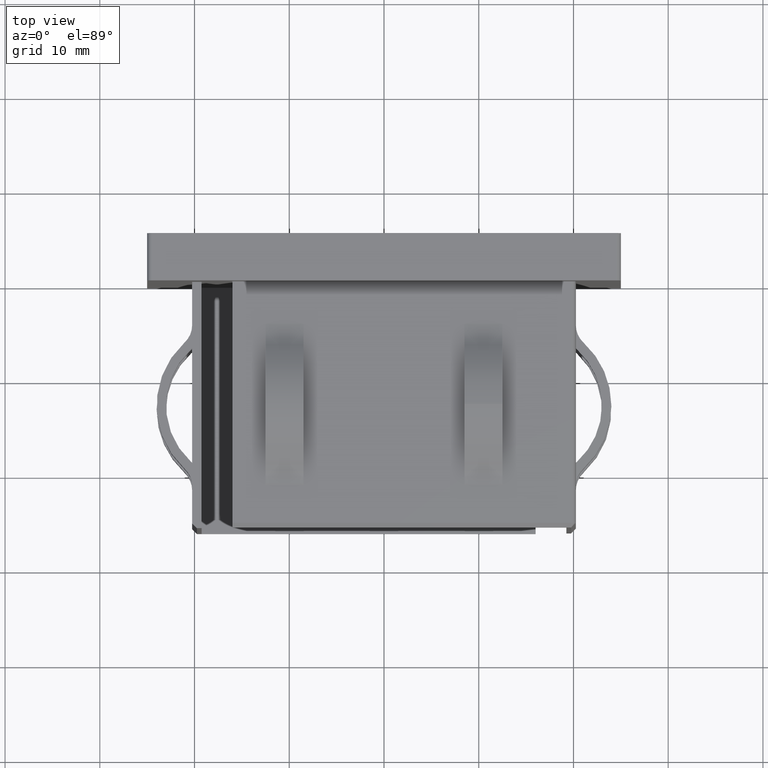
[diagram: clean part render]
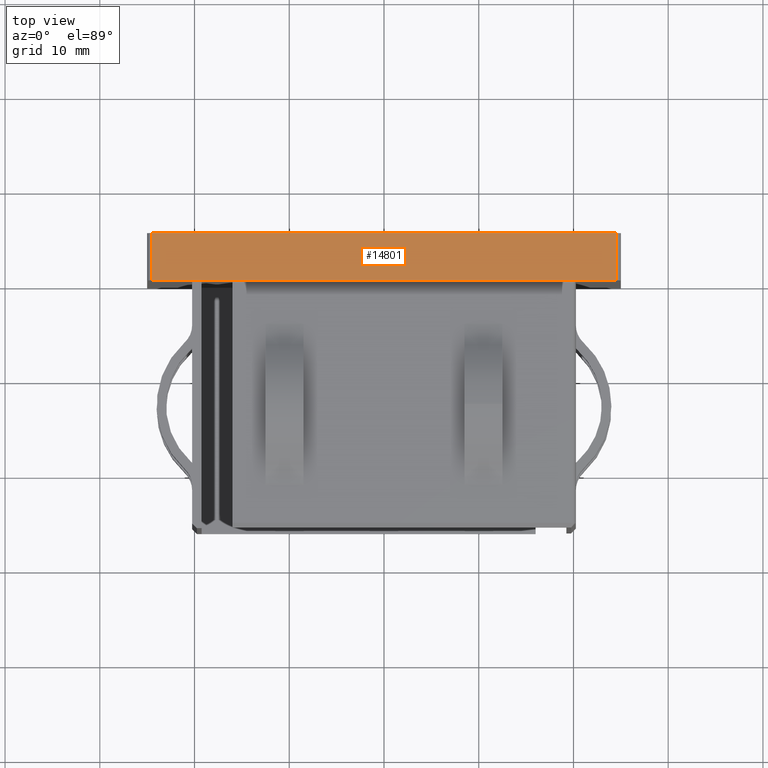
[diagram: same view with one face highlighted and labeled with its STEP entity id]
A machine part, top view. The second image highlights one B-rep face of the part: STEP entity #14801.
In plain terms, the highlighted planar face has unit normal (0, 0, -1).
Its self-contained STEP definition (entity closure, byte-faithful):
#198 = CARTESIAN_POINT ( 'NONE',  ( -24.50000000000000000, 5.000000000000000000, 24.99999999999999600 ) ) ;
#1029 = CARTESIAN_POINT ( 'NONE',  ( -25.00000000000000000, 0.0000000000000000000, 24.99999999999999600 ) ) ;
#1241 = CARTESIAN_POINT ( 'NONE',  ( -25.00000000000000000, 5.000000000000000000, 24.99999999999999600 ) ) ;
#1532 = DIRECTION ( 'NONE',  ( 0.0000000000000000000, -1.000000000000000000, 0.0000000000000000000 ) ) ;
#3226 = VECTOR ( 'NONE', #3914, 1000.000000000000000 ) ;
#3914 = DIRECTION ( 'NONE',  ( 1.000000000000000000, 0.0000000000000000000, 0.0000000000000000000 ) ) ;
#4127 = DIRECTION ( 'NONE',  ( 0.0000000000000000000, 0.0000000000000000000, -1.000000000000000000 ) ) ;
#4508 = CARTESIAN_POINT ( 'NONE',  ( -25.00000000000000000, 5.000000000000000000, 24.99999999999999600 ) ) ;
#5433 = EDGE_CURVE ( 'NONE', #12269, #12909, #12142, .T. ) ;
#6703 = DIRECTION ( 'NONE',  ( -0.0000000000000000000, 1.000000000000000000, -0.0000000000000000000 ) ) ;
#7184 = AXIS2_PLACEMENT_3D ( 'NONE', #1241, #4127, #17262 ) ;
#8304 = VECTOR ( 'NONE', #14711, 1000.000000000000000 ) ;
#9791 = EDGE_CURVE ( 'NONE', #11595, #12909, #14881, .T. ) ;
#9938 = VECTOR ( 'NONE', #6703, 1000.000000000000000 ) ;
#11170 = CARTESIAN_POINT ( 'NONE',  ( -24.50000000000000000, 0.0000000000000000000, 24.99999999999999600 ) ) ;
#11236 = LINE ( 'NONE', #14454, #18016 ) ;
#11247 = PLANE ( 'NONE',  #7184 ) ;
#11595 = VERTEX_POINT ( 'NONE', #11723 ) ;
#11723 = CARTESIAN_POINT ( 'NONE',  ( 24.50000000000000000, 0.0000000000000000000, 24.99999999999999600 ) ) ;
#12142 = LINE ( 'NONE', #4508, #8304 ) ;
#12269 = VERTEX_POINT ( 'NONE', #198 ) ;
#12763 = EDGE_CURVE ( 'NONE', #15204, #11595, #17016, .T. ) ;
#12909 = VERTEX_POINT ( 'NONE', #14319 ) ;
#13554 = FACE_OUTER_BOUND ( 'NONE', #14868, .T. ) ;
#14319 = CARTESIAN_POINT ( 'NONE',  ( 24.50000000000000000, 5.000000000000000000, 24.99999999999999600 ) ) ;
#14433 = ORIENTED_EDGE ( 'NONE', *, *, #5433, .F. ) ;
#14454 = CARTESIAN_POINT ( 'NONE',  ( -24.50000000000000000, 5.000000000000000000, 24.99999999999999600 ) ) ;
#14711 = DIRECTION ( 'NONE',  ( 1.000000000000000000, 0.0000000000000000000, 0.0000000000000000000 ) ) ;
#14801 = ADVANCED_FACE ( 'NONE', ( #13554 ), #11247, .F. ) ;
#14868 = EDGE_LOOP ( 'NONE', ( #17148, #17654, #14433, #18371 ) ) ;
#14881 = LINE ( 'NONE', #15018, #9938 ) ;
#15018 = CARTESIAN_POINT ( 'NONE',  ( 24.50000000000000000, 5.000000000000000000, 24.99999999999999600 ) ) ;
#15204 = VERTEX_POINT ( 'NONE', #11170 ) ;
#16310 = EDGE_CURVE ( 'NONE', #12269, #15204, #11236, .T. ) ;
#17016 = LINE ( 'NONE', #1029, #3226 ) ;
#17148 = ORIENTED_EDGE ( 'NONE', *, *, #12763, .T. ) ;
#17262 = DIRECTION ( 'NONE',  ( -1.000000000000000000, 0.0000000000000000000, -0.0000000000000000000 ) ) ;
#17654 = ORIENTED_EDGE ( 'NONE', *, *, #9791, .T. ) ;
#18016 = VECTOR ( 'NONE', #1532, 1000.000000000000000 ) ;
#18371 = ORIENTED_EDGE ( 'NONE', *, *, #16310, .T. ) ;